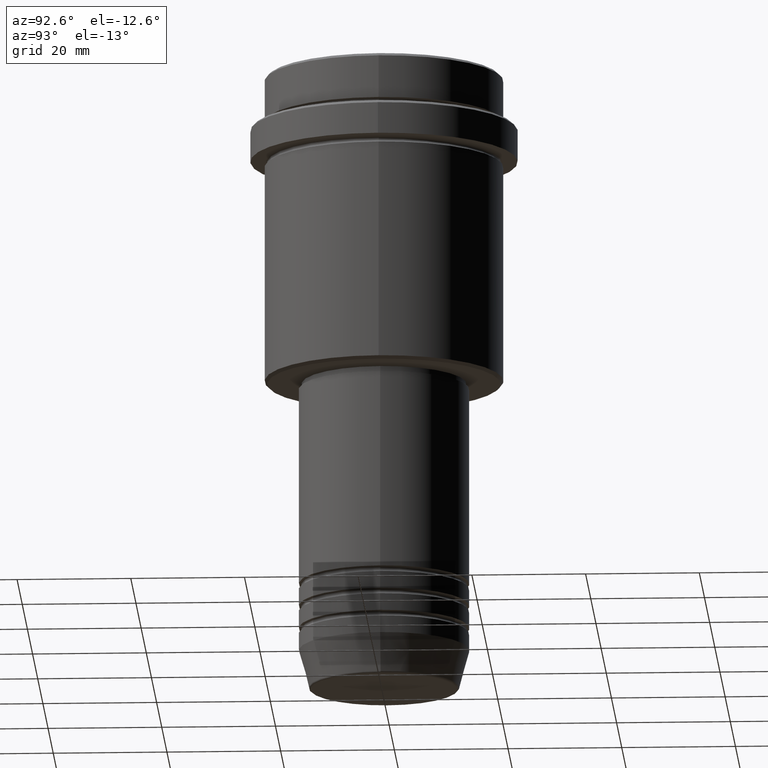
[diagram: clean part render]
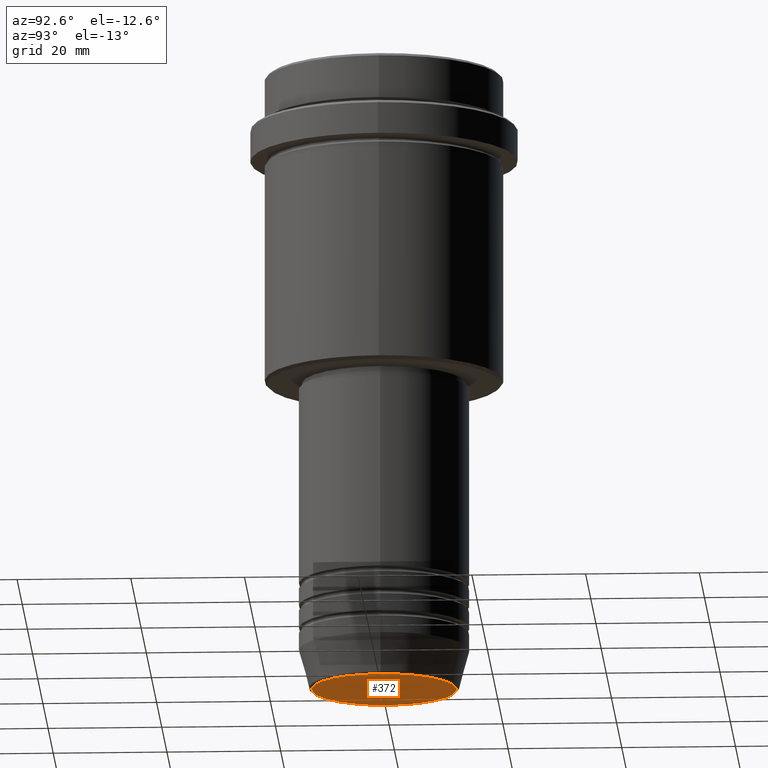
[diagram: same view with one face highlighted and labeled with its STEP entity id]
A machine part, auxiliary view. The second image highlights one B-rep face of the part: STEP entity #372.
In plain terms, the highlighted planar face has unit normal (0, -0, 1).
Its self-contained STEP definition (entity closure, byte-faithful):
#164 = DIRECTION ( 'NONE',  ( 0.000000000000000000, 0.000000000000000000, -1.000000000000000000 ) ) ;
#210 = CARTESIAN_POINT ( 'NONE',  ( 0.000000000000000000, 0.000000000000000000, -109.9999999999999858 ) ) ;
#242 = PLANE ( 'NONE',  #421 ) ;
#303 = CARTESIAN_POINT ( 'NONE',  ( 0.000000000000000000, 0.000000000000000000, -109.9999999999999858 ) ) ;
#305 = VERTEX_POINT ( 'NONE', #852 ) ;
#367 = DIRECTION ( 'NONE',  ( 1.000000000000000000, 0.000000000000000000, 0.000000000000000000 ) ) ;
#372 = ADVANCED_FACE ( 'NONE', ( #968 ), #242, .F. ) ;
#376 = CIRCLE ( 'NONE', #865, 12.74069215899265650 ) ;
#421 = AXIS2_PLACEMENT_3D ( 'NONE', #210, #973, #1088 ) ;
#522 = EDGE_CURVE ( 'NONE', #661, #305, #376, .T. ) ;
#551 = EDGE_CURVE ( 'NONE', #305, #661, #1390, .T. ) ;
#661 = VERTEX_POINT ( 'NONE', #876 ) ;
#852 = CARTESIAN_POINT ( 'NONE',  ( -12.74069215899265650, 1.589857736427680640E-15, -109.9999999999999858 ) ) ;
#862 = DIRECTION ( 'NONE',  ( 1.000000000000000000, 0.000000000000000000, 0.000000000000000000 ) ) ;
#865 = AXIS2_PLACEMENT_3D ( 'NONE', #1354, #164, #367 ) ;
#876 = CARTESIAN_POINT ( 'NONE',  ( 12.74069215899265650, 0.000000000000000000, -109.9999999999999858 ) ) ;
#949 = DIRECTION ( 'NONE',  ( 0.000000000000000000, 0.000000000000000000, -1.000000000000000000 ) ) ;
#968 = FACE_OUTER_BOUND ( 'NONE', #1331, .T. ) ;
#972 = ORIENTED_EDGE ( 'NONE', *, *, #551, .T. ) ;
#973 = DIRECTION ( 'NONE',  ( 0.000000000000000000, -0.000000000000000000, 1.000000000000000000 ) ) ;
#1088 = DIRECTION ( 'NONE',  ( 1.000000000000000000, 0.000000000000000000, 0.000000000000000000 ) ) ;
#1184 = AXIS2_PLACEMENT_3D ( 'NONE', #303, #949, #862 ) ;
#1331 = EDGE_LOOP ( 'NONE', ( #1336, #972 ) ) ;
#1336 = ORIENTED_EDGE ( 'NONE', *, *, #522, .T. ) ;
#1354 = CARTESIAN_POINT ( 'NONE',  ( 0.000000000000000000, 0.000000000000000000, -109.9999999999999858 ) ) ;
#1390 = CIRCLE ( 'NONE', #1184, 12.74069215899265650 ) ;